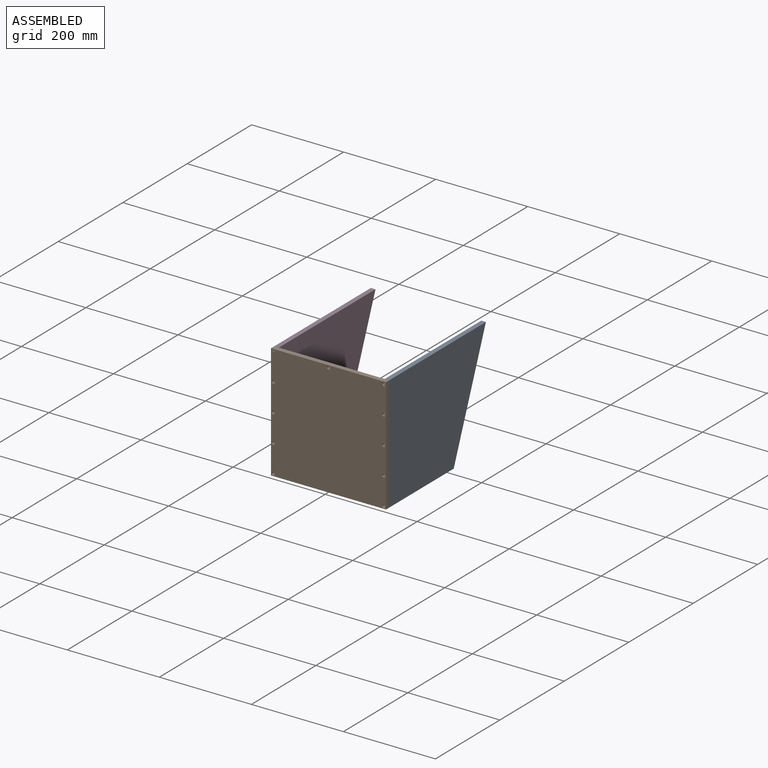
[diagram: assembled view]
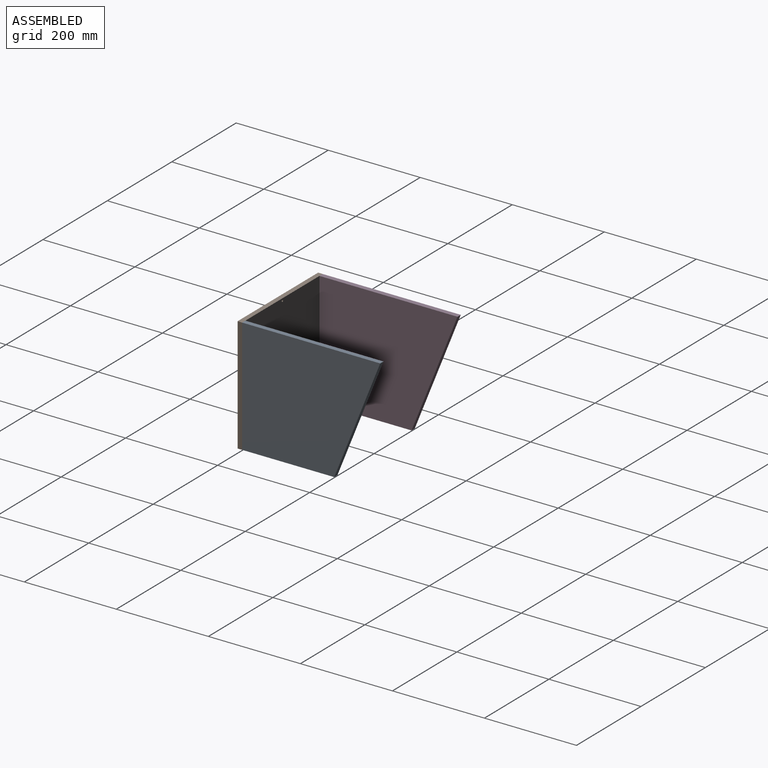
[diagram: assembled view, second angle]
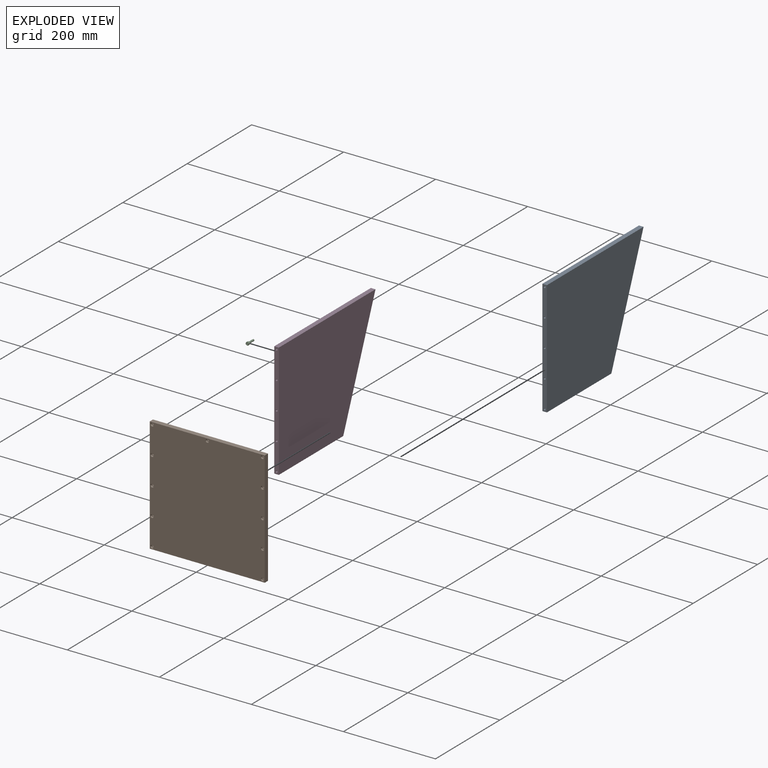
[diagram: exploded view]
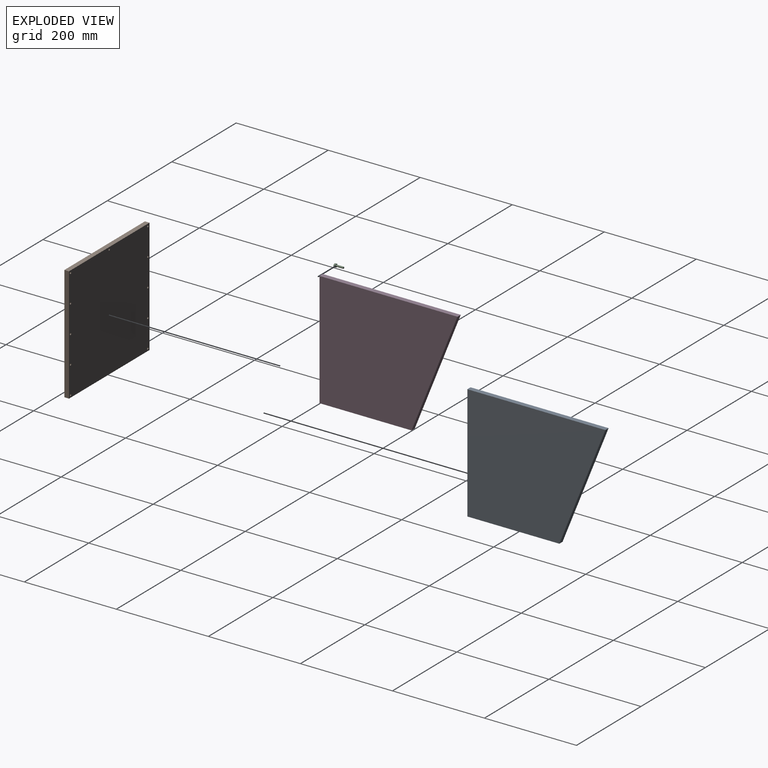
[diagram: exploded view, second angle]
ASSEMBLY  parts=4 mates=3
PART A: 21 faces, bbox 250x10x300 mm
  f0: cylinder r=2mm len=10mm, axis (0,0,-1), area 109.7mm2, adj f2,f18
  f1: plane 300x10mm, normal (-1,0,0), area 3000mm2, adj f2,f4,f5,f6
  f2: plane 250x10mm, normal (0,0,-1), area 2437.2mm2, adj f0,f1,f3,f5,f6,f8,f10,f12
  f3: plane 200x10mm, normal (1,0,0), area 1962.3mm2, adj f2,f4,f5,f6,f16,f18,f20
  f4: plane 250x100mm, normal (0.37,0,0.93), area 2692.6mm2, adj f1,f3,f5,f6
  f5: plane 300x250mm, normal (0,-1,0), area 62500mm2, adj f1,f2,f3,f4
  f6: plane 300x250mm, normal (0,1,0), area 62500mm2, adj f1,f2,f3,f4
  f7: cone r=0mm half-angle=59deg, axis (0,0,-1), area 14.7mm2, adj f8
  f8: cylinder r=2mm len=10mm, axis (0,0,-1), area 125.7mm2, adj f2,f7
  f9: cone r=0mm half-angle=59deg, axis (0,0,-1), area 14.7mm2, adj f10
  f10: cylinder r=2mm len=10mm, axis (0,0,-1), area 125.7mm2, adj f2,f9
  f11: cone r=0mm half-angle=59deg, axis (0,0,-1), area 14.7mm2, adj f12
  f12: cylinder r=2mm len=10mm, axis (0,0,-1), area 125.7mm2, adj f2,f11
  f13: cone r=0mm half-angle=59deg, axis (0,0,-1), area 14.7mm2, adj f14
  f14: cylinder r=2mm len=10mm, axis (0,0,-1), area 125.7mm2, adj f2,f13
  f15: cone r=0mm half-angle=59deg, axis (1,0,0), area 14.7mm2, adj f16
  f16: cylinder r=2mm len=10mm, axis (1,0,0), area 125.7mm2, adj f3,f15
  f17: cone r=0mm half-angle=59deg, axis (1,0,0), area 14.7mm2, adj f18
  f18: cylinder r=2mm len=10mm, axis (1,0,0), area 109.7mm2, adj f0,f3,f17
  f19: cone r=0mm half-angle=59deg, axis (1,0,0), area 14.7mm2, adj f20
  f20: cylinder r=2mm len=10mm, axis (1,0,0), area 125.7mm2, adj f3,f19
PART B: 45 faces, bbox 250x10x250 mm
  f0: plane 7x6.77mm, normal (0,-1,0), area 25.5mm2, adj f1,f31,f42
  f1: cylinder r=3.5mm len=7mm, axis (0,-1,0), area 87.4mm2, adj f0,f8,f42
  f2: plane 7x6.77mm, normal (0,-1,0), area 25.5mm2, adj f3,f38,f40
  f3: cylinder r=3.5mm len=7mm, axis (0,-1,0), area 87.4mm2, adj f2,f8,f40
  f4: plane 250x10mm, normal (1,0,0), area 2500mm2, adj f5,f7,f8,f9
  f5: plane 250x10mm, normal (0,0,1), area 2500mm2, adj f4,f6,f8,f9
  f6: plane 250x10mm, normal (-1,0,0), area 2500mm2, adj f5,f7,f8,f9
  f7: plane 250x10mm, normal (0,0,-1), area 2462.3mm2, adj f4,f6,f8,f9,f40,f42,f44
  f8: plane 250x250mm, normal (0,-1,0), area 62076.7mm2, adj f1,f3,f4,f5,f6,f7,f12,f15
  f9: plane 250x250mm, normal (0,1,0), area 62361.8mm2, adj f4,f5,f6,f7,f10,f13,f16,f19
  f10: cylinder r=2mm len=6mm, axis (0,-1,0), area 75.4mm2, adj f9,f11
  f11: plane 7x7mm, normal (0,-1,0), area 25.9mm2, adj f10,f12
  f12: cylinder r=3.5mm len=7mm, axis (0,-1,0), area 88mm2, adj f8,f11
  f13: cylinder r=2mm len=6mm, axis (0,-1,0), area 75.4mm2, adj f9,f14
  f14: plane 7x7mm, normal (0,-1,0), area 25.9mm2, adj f13,f15
  f15: cylinder r=3.5mm len=7mm, axis (0,-1,0), area 88mm2, adj f8,f14
  f16: cylinder r=2mm len=6mm, axis (0,-1,0), area 75.4mm2, adj f9,f17
  f17: plane 7x7mm, normal (0,-1,0), area 25.9mm2, adj f16,f18
  f18: cylinder r=3.5mm len=7mm, axis (0,-1,0), area 88mm2, adj f8,f17
  f19: cylinder r=2mm len=6mm, axis (0,-1,0), area 75.4mm2, adj f9,f20
  f20: plane 7x7mm, normal (0,-1,0), area 25.9mm2, adj f19,f21
  f21: cylinder r=3.5mm len=7mm, axis (0,-1,0), area 88mm2, adj f8,f20
  f22: cylinder r=2mm len=6mm, axis (0,-1,0), area 75.4mm2, adj f9,f23
  f23: plane 7x7mm, normal (0,-1,0), area 25.9mm2, adj f22,f24
  f24: cylinder r=3.5mm len=7mm, axis (0,-1,0), area 88mm2, adj f8,f23
  f25: cylinder r=2mm len=6mm, axis (0,-1,0), area 75.4mm2, adj f9,f26
  f26: plane 7x7mm, normal (0,-1,0), area 25.9mm2, adj f25,f27
  f27: cylinder r=3.5mm len=7mm, axis (0,-1,0), area 88mm2, adj f8,f26
  f28: cylinder r=2mm len=6mm, axis (0,-1,0), area 75.4mm2, adj f9,f29
  f29: plane 7x7mm, normal (0,-1,0), area 25.9mm2, adj f28,f30
  f30: cylinder r=3.5mm len=7mm, axis (0,-1,0), area 88mm2, adj f8,f29
  f31: cylinder r=2mm len=6mm, axis (0,-1,0), area 75.4mm2, adj f0,f9
  f32: cylinder r=2mm len=6mm, axis (0,-1,0), area 75.4mm2, adj f9,f33
  f33: plane 7x7mm, normal (0,-1,0), area 25.9mm2, adj f32,f34
  f34: cylinder r=3.5mm len=7mm, axis (0,-1,0), area 88mm2, adj f8,f33
  f35: cylinder r=2mm len=6mm, axis (0,-1,0), area 75.4mm2, adj f9,f36
  f36: plane 7x7mm, normal (0,-1,0), area 25.9mm2, adj f35,f37
  f37: cylinder r=3.5mm len=7mm, axis (0,-1,0), area 88mm2, adj f8,f36
  f38: cylinder r=2mm len=6mm, axis (0,-1,0), area 75.4mm2, adj f2,f9
  f39: cone r=0mm half-angle=59deg, axis (0,0,-1), area 14.7mm2, adj f40
  f40: cylinder r=2mm len=10mm, axis (0,0,-1), area 125mm2, adj f2,f3,f7,f39
  f41: cone r=0mm half-angle=59deg, axis (0,0,-1), area 14.7mm2, adj f42
  f42: cylinder r=2mm len=10mm, axis (0,0,-1), area 125mm2, adj f0,f1,f7,f41
  f43: cone r=0mm half-angle=59deg, axis (0,0,-1), area 14.7mm2, adj f44
  f44: cylinder r=2mm len=10mm, axis (0,0,-1), area 125.7mm2, adj f7,f43
PART C: 24 faces, bbox 20x7.6x7.6 mm
  f0: plane 1.3x0.75mm, normal (-1,0,0), area 0.1mm2, adj f16,f17,f23
  f1: plane 1.5x0.43mm, normal (-1,0,0), area 0.1mm2, adj f17,f18,f23
  f2: plane 1.3x0.75mm, normal (-1,0,0), area 0.1mm2, adj f18,f19,f23
  f3: plane 1.3x0.75mm, normal (-1,0,0), area 0.1mm2, adj f19,f20,f23
  f4: plane 1.5x0.43mm, normal (-1,0,0), area 0.1mm2, adj f20,f21,f23
  f5: cone r=1.74mm half-angle=60deg, axis (-1,0,0), area 2mm2, adj f15,f16,f17,f18,f19,f20,f21
  f6: cone r=2.01mm half-angle=20.6deg, axis (-1,0,0), area 5.6mm2, adj f7,f11
  f7: torus R=2.2mm, axis (1,0,0), area 0.9mm2, adj f6,f10
  f8: plane 3.14x3.14mm, normal (1,0,0), area 7.7mm2, adj f9
  f9: cone r=2mm half-angle=45deg, axis (-1,0,0), area 6.8mm2, adj f8,f10
  f10: cylinder r=2mm len=14.97mm, axis (1,0,0), area 188.1mm2, adj f7,f9
  f11: torus R=2.35mm, axis (1,0,0), area 3.4mm2, adj f6,f13
  f12: cylinder r=3.5mm len=7mm, axis (1,0,0), area 79.2mm2, adj f13,f14
  f13: plane 7x7mm, normal (1,0,0), area 21.1mm2, adj f11,f12
  f14: torus R=3.1mm, axis (1,0,0), area 13.2mm2, adj f12,f15
  f15: plane 6.2x6.2mm, normal (-1,0,0), area 20.7mm2, adj f5,f14
  f16: plane 2x1.74mm, normal (0,0,-1), area 3.3mm2, adj f0,f5,f17,f21,f22
  f17: plane 2x1.5mm, normal (0,0.87,-0.5), area 3.3mm2, adj f0,f1,f5,f16,f18
  f18: plane 2x1.5mm, normal (0,0.87,0.5), area 3.3mm2, adj f1,f2,f5,f17,f19
  f19: plane 2x1.74mm, normal (0,0,1), area 3.3mm2, adj f2,f3,f5,f18,f20
  f20: plane 2x1.5mm, normal (0,-0.87,0.5), area 3.3mm2, adj f3,f4,f5,f19,f21
  f21: plane 2x1.5mm, normal (0,-0.87,-0.5), area 3.3mm2, adj f4,f5,f16,f20,f22
  f22: plane 1.3x0.75mm, normal (-1,0,0), area 0.1mm2, adj f16,f21,f23
  f23: cone r=1.5mm half-angle=60deg, axis (-1,0,0), area 8.2mm2, adj f0,f1,f2,f3,f4,f22
PART D: same geometry as A
PLACE A rot(axis=(-0.58,0.58,0.58),120deg) t=(324.32,7.39,360.55)mm
PLACE B t=(84.32,7.39,110.55)mm
PLACE C rot(axis=(-0.58,-0.58,0.58),120deg) t=(89.32,0.99,355.55)mm
PLACE D rot(axis=(-0.58,0.58,0.58),120deg) t=(84.32,7.39,360.55)mm
MATE fastened D.f7 <-> B.f10  axis (0,-1,0) through (89.32,7.39,355.55)mm
MATE fastened C.f5 <-> B.f10  axis (0,1,0) through (89.32,-2.61,355.55)mm
MATE fastened A.f7 <-> B.f19  axis (0,-1,0) through (329.32,7.39,355.55)mm
